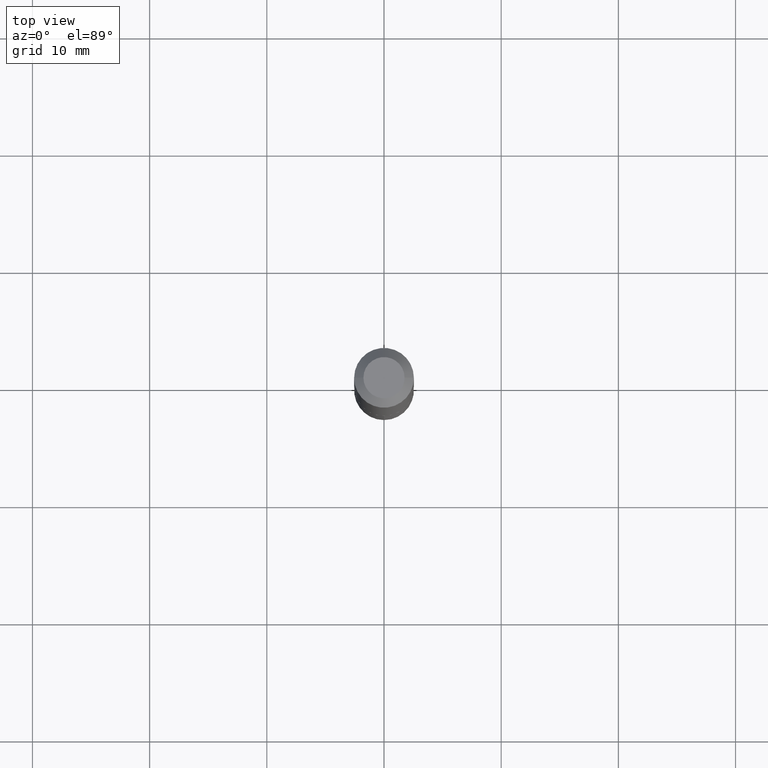
[diagram: clean part render]
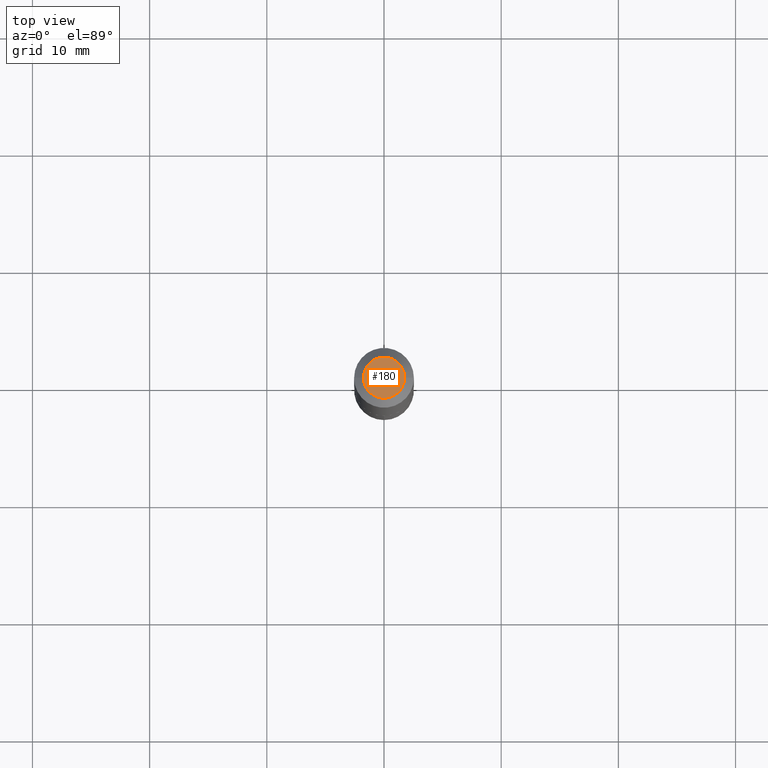
[diagram: same view with one face highlighted and labeled with its STEP entity id]
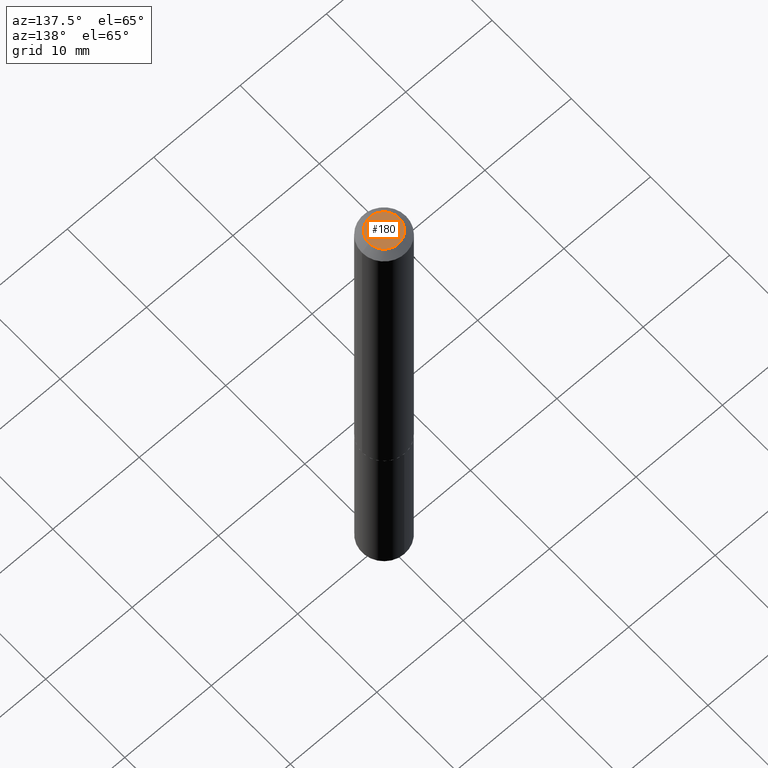
[diagram: same view with one face highlighted and labeled with its STEP entity id]
A machine part, top view. The second image highlights one B-rep face of the part: STEP entity #180.
A second angle (auxiliary view) of the same face is appended — the face is thin or edge-on in the first view.
In plain terms, the highlighted planar face has unit normal (0, -0, -1).
Its self-contained STEP definition (entity closure, byte-faithful):
#3 = DIRECTION ( 'NONE',  ( 1.000000000000000000, -6.982962677686267499E-15, 4.876150890010814113E-29 ) ) ;
#5 = CARTESIAN_POINT ( 'NONE',  ( -1.182960040634188585E-47, 1.688953421129311321E-33, 4.837354856632064502E-19 ) ) ;
#54 = CARTESIAN_POINT ( 'NONE',  ( -1.182960040634188585E-47, 1.688953421129311321E-33, 4.837354856632064502E-19 ) ) ;
#57 = EDGE_CURVE ( 'NONE', #320, #302, #317, .T. ) ;
#65 = DIRECTION ( 'NONE',  ( 2.438088387897960049E-29, -3.491481338843145188E-15, -1.000000000000000000 ) ) ;
#66 = CARTESIAN_POINT ( 'NONE',  ( 0.06915000000000000313, -6.361531136805061115E-16, 4.837354856671185917E-19 ) ) ;
#67 = CIRCLE ( 'NONE', #236, 0.06915000000000000313 ) ;
#87 = PLANE ( 'NONE',  #172 ) ;
#90 = DIRECTION ( 'NONE',  ( -2.445468806185136597E-29, 3.491481338843145583E-15, 1.000000000000000000 ) ) ;
#116 = DIRECTION ( 'NONE',  ( 1.000000000000000000, -6.982962677686267499E-15, 4.876150890010814113E-29 ) ) ;
#125 = EDGE_CURVE ( 'NONE', #302, #320, #67, .T. ) ;
#155 = CARTESIAN_POINT ( 'NONE',  ( -0.06915000000000000313, 5.374262650814288063E-16, 4.837354856596389538E-19 ) ) ;
#172 = AXIS2_PLACEMENT_3D ( 'NONE', #324, #65, #226 ) ;
#180 = ADVANCED_FACE ( 'NONE', ( #363 ), #87, .F. ) ;
#181 = DIRECTION ( 'NONE',  ( -2.445468806185136597E-29, 3.491481338843145583E-15, 1.000000000000000000 ) ) ;
#226 = DIRECTION ( 'NONE',  ( -1.000000000000000000, 6.982962677686265922E-15, -4.876176775795935793E-29 ) ) ;
#236 = AXIS2_PLACEMENT_3D ( 'NONE', #54, #181, #116 ) ;
#238 = EDGE_LOOP ( 'NONE', ( #289, #333 ) ) ;
#289 = ORIENTED_EDGE ( 'NONE', *, *, #57, .T. ) ;
#302 = VERTEX_POINT ( 'NONE', #66 ) ;
#317 = CIRCLE ( 'NONE', #374, 0.06915000000000000313 ) ;
#320 = VERTEX_POINT ( 'NONE', #155 ) ;
#324 = CARTESIAN_POINT ( 'NONE',  ( -5.914800203170942927E-48, 8.444767105646556605E-34, 2.418677428316032251E-19 ) ) ;
#333 = ORIENTED_EDGE ( 'NONE', *, *, #125, .T. ) ;
#363 = FACE_OUTER_BOUND ( 'NONE', #238, .T. ) ;
#374 = AXIS2_PLACEMENT_3D ( 'NONE', #5, #90, #3 ) ;